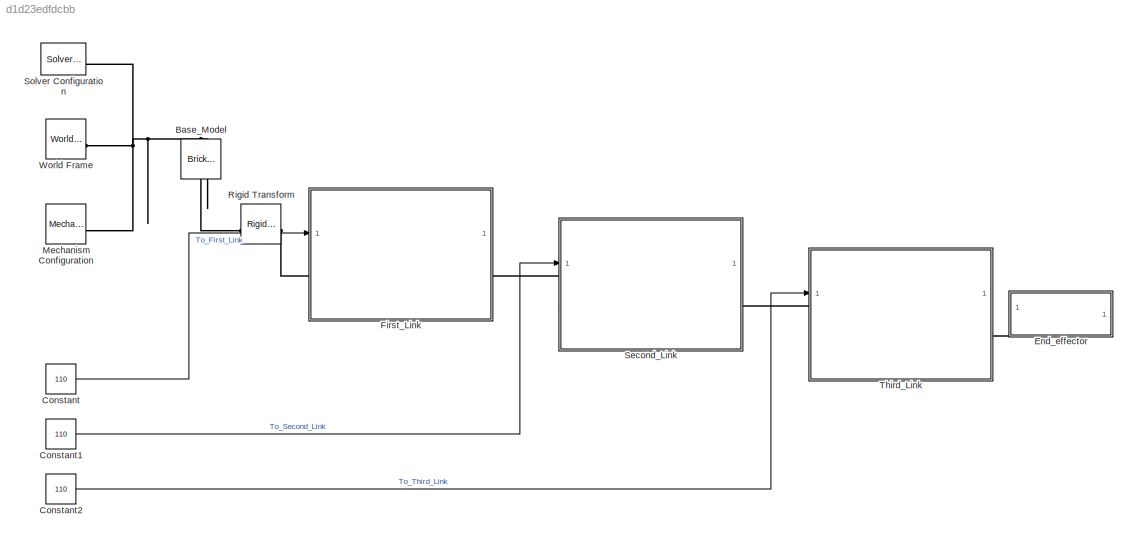
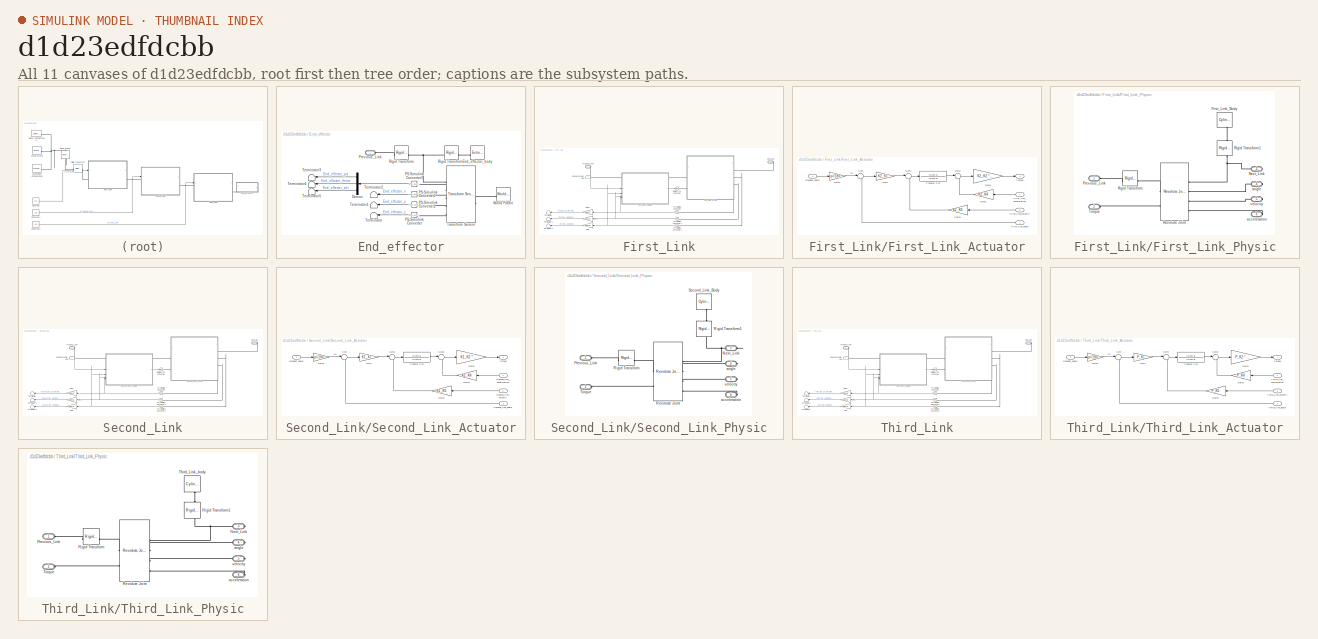
[diagram: thumbnail index - all 11 canvases of the model, root first then tree order]
MODEL slx_d1d23edfdcbb
KIND model
CONFIG AbsTol = 1e-3
CONFIG EnableMultiTasking = off
CONFIG FixedStep = auto
CONFIG MaxStep = auto
CONFIG MinStep = auto
CONFIG RelTol = 1e-3
CONFIG SampleTimeConstraint = Unconstrained
CONFIG SolverName = VariableStepAuto
CONFIG StartTime = 0.0
CONFIG StopTime = 1
BLOCK [Reference] Base_Model  REF=sm_lib/Body Elements/Brick Solid
  NameLocation = left
  SourceBlock = sm_lib/Body Elements/Brick Solid
  SourceType = Brick Solid
BLOCK [Constant] Constant
  Value = 110
BLOCK [Constant] Constant1
  Value = 110
BLOCK [Constant] Constant2
  Value = 110
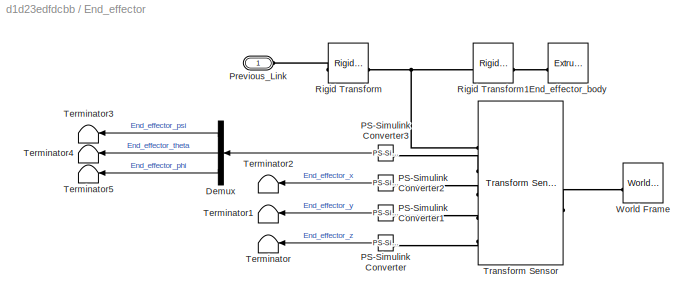
BLOCK [SubSystem] End_effector
BLOCK [PMIOPort] End_effector/ Previous_Link
  Side = Left
BLOCK [Demux] End_effector/Demux
  NameLocation = top
  Outputs = 3
BLOCK [Reference] End_effector/End_effector_body  REF=sm_lib/Body Elements/Extruded Solid
  NameLocation = top
  SourceBlock = sm_lib/Body Elements/Extruded Solid
  SourceType = Extruded Solid
BLOCK [Reference] End_effector/PS-Simulink Converter  REF=nesl_utility/PS-Simulink
Converter
  NameLocation = top
  SourceBlock = nesl_utility/PS-Simulink\nConverter
  SourceType = PS-Simulink\nConverter
BLOCK [Reference] End_effector/PS-Simulink Converter1  REF=nesl_utility/PS-Simulink
Converter
  NameLocation = top
  SourceBlock = nesl_utility/PS-Simulink\nConverter
  SourceType = PS-Simulink\nConverter
BLOCK [Reference] End_effector/PS-Simulink Converter2  REF=nesl_utility/PS-Simulink
Converter
  NameLocation = top
  SourceBlock = nesl_utility/PS-Simulink\nConverter
  SourceType = PS-Simulink\nConverter
BLOCK [Reference] End_effector/PS-Simulink Converter3  REF=nesl_utility/PS-Simulink
Converter
  NameLocation = top
  SourceBlock = nesl_utility/PS-Simulink\nConverter
  SourceType = PS-Simulink\nConverter
BLOCK [Reference] End_effector/Rigid Transform  REF=sm_lib/Frames and
Transforms/Rigid
Transform
  SourceBlock = sm_lib/Frames and\nTransforms/Rigid\nTransform
  SourceType = Rigid\nTransform
BLOCK [Reference] End_effector/Rigid Transform1  REF=sm_lib/Frames and
Transforms/Rigid
Transform
  NameLocation = top
  SourceBlock = sm_lib/Frames and\nTransforms/Rigid\nTransform
  SourceType = Rigid\nTransform
BLOCK [Terminator] End_effector/Terminator
  NameLocation = top
BLOCK [Terminator] End_effector/Terminator1
  NameLocation = top
BLOCK [Terminator] End_effector/Terminator2
  NameLocation = top
BLOCK [Terminator] End_effector/Terminator3
  NameLocation = top
BLOCK [Terminator] End_effector/Terminator4
  NameLocation = top
BLOCK [Terminator] End_effector/Terminator5
  NameLocation = top
BLOCK [Reference] End_effector/Transform Sensor  REF=sm_lib/Frames and
Transforms/Transform
Sensor
  SourceBlock = sm_lib/Frames and\nTransforms/Transform\nSensor
  SourceType = Transform\nSensor
BLOCK [Reference] End_effector/World Frame  REF=sm_lib/Frames and
Transforms/World Frame
  SourceBlock = sm_lib/Frames and\nTransforms/World Frame
  SourceType = World Frame
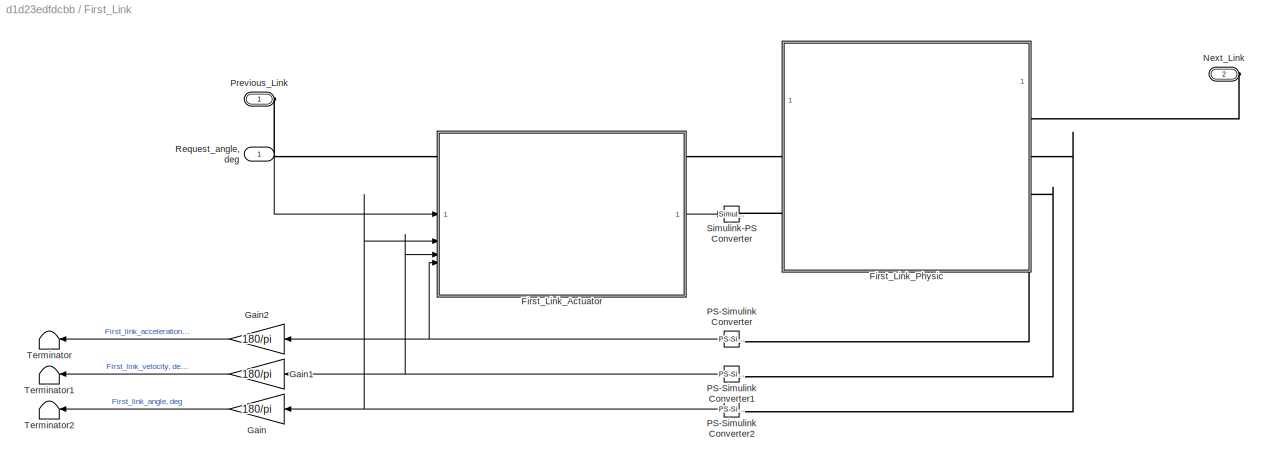
BLOCK [SubSystem] First_Link
  PortSchema = {"entries":[{"content":{"sides":[{"content":{"connectorIds":["LConn1","In1"]},"type":"ConnectorPlacement.EquallySpacedRectSide","uuid":"66fdbe92-d6ab-4206-84fe-86206e1853da"},{"content":{"connectorIds":["RConn1"],"side":"RIGHT"},"type":"ConnectorPlacement.EquallySpacedRectSide","uuid":"85951761-cf01-4a63-8fcb-bb43d3271314"},{"content":{"side":"TOP"},"type":"ConnectorPlacement.EquallySpacedRectSide...<+233ch>  <repeated x3 — deduplicated; at blocks: First_Link, Second_Link, Third_Link>
BLOCK [SubSystem] First_Link/First_Link_Actuator
BLOCK [Inport] First_Link/First_Link_Actuator/First_link_acceleration
  NameLocation = right
  Port = 4
BLOCK [Inport] First_Link/First_Link_Actuator/First_link_angle
  NameLocation = right
  Port = 2
BLOCK [Inport] First_Link/First_Link_Actuator/First_link_velocity
  NameLocation = right
  Port = 3
BLOCK [Gain] First_Link/First_Link_Actuator/Gain
  Gain = K2_K1
BLOCK [Gain] First_Link/First_Link_Actuator/Gain1
  Gain = K2_K2 * K2_K3
BLOCK [Gain] First_Link/First_Link_Actuator/Gain2
  Gain = K2_K4
BLOCK [Gain] First_Link/First_Link_Actuator/Gain3
  Gain = K2_K5
BLOCK [Gain] First_Link/First_Link_Actuator/Gain4
  Gain = pi/180
BLOCK [Inport] First_Link/First_Link_Actuator/Request_angle
BLOCK [Sum] First_Link/First_Link_Actuator/Sum
  Inputs = |+-
BLOCK [Sum] First_Link/First_Link_Actuator/Sum1
  Inputs = |+-
BLOCK [Sum] First_Link/First_Link_Actuator/Sum2
  Inputs = |+-
BLOCK [Outport] First_Link/First_Link_Actuator/Torque
  NameLocation = right
BLOCK [TransferFcn] First_Link/First_Link_Actuator/Transfer Fcn
  Denominator = [0.044 0]
  Numerator = [0.044 1]
BLOCK [SubSystem] First_Link/First_Link_Physic
BLOCK [Reference] First_Link/First_Link_Physic/First_Link_Body  REF=sm_lib/Body Elements/Cylindrical Solid
  NameLocation = left
  SourceBlock = sm_lib/Body Elements/Cylindrical Solid
  SourceType = Cylindrical Solid
BLOCK [PMIOPort] First_Link/First_Link_Physic/Next_Link
  NameLocation = right
  Port = 3
  Side = Right
BLOCK [PMIOPort] First_Link/First_Link_Physic/Previous_Link
  Side = Left
BLOCK [Reference] First_Link/First_Link_Physic/Revolute Joint  REF=sm_lib/Joints/Revolute Joint
  SourceBlock = sm_lib/Joints/Revolute Joint
  SourceType = Revolute Joint
BLOCK [Reference] First_Link/First_Link_Physic/Rigid Transform  REF=sm_lib/Frames and
Transforms/Rigid
Transform
  SourceBlock = sm_lib/Frames and\nTransforms/Rigid\nTransform
  SourceType = Rigid\nTransform
BLOCK [Reference] First_Link/First_Link_Physic/Rigid Transform1  REF=sm_lib/Frames and
Transforms/Rigid
Transform
  NameLocation = left
  SourceBlock = sm_lib/Frames and\nTransforms/Rigid\nTransform
  SourceType = Rigid\nTransform
BLOCK [PMIOPort] First_Link/First_Link_Physic/Torque
  Port = 2
  Side = Left
BLOCK [PMIOPort] First_Link/First_Link_Physic/acceleration
  NameLocation = right
  Port = 6
  Side = Right
BLOCK [PMIOPort] First_Link/First_Link_Physic/angle
  NameLocation = right
  Port = 4
  Side = Right
BLOCK [PMIOPort] First_Link/First_Link_Physic/velocity
  NameLocation = right
  Port = 5
  Side = Right
BLOCK [Gain] First_Link/Gain
  Gain = 180/pi
BLOCK [Gain] First_Link/Gain1
  Gain = 180/pi
BLOCK [Gain] First_Link/Gain2
  Gain = 180/pi
BLOCK [PMIOPort] First_Link/Next_Link
  Port = 2
  Side = Right
BLOCK [Reference] First_Link/PS-Simulink Converter  REF=nesl_utility/PS-Simulink
Converter
  SourceBlock = nesl_utility/PS-Simulink\nConverter
  SourceType = PS-Simulink\nConverter
BLOCK [Reference] First_Link/PS-Simulink Converter1  REF=nesl_utility/PS-Simulink
Converter
  SourceBlock = nesl_utility/PS-Simulink\nConverter
  SourceType = PS-Simulink\nConverter
BLOCK [Reference] First_Link/PS-Simulink Converter2  REF=nesl_utility/PS-Simulink
Converter
  SourceBlock = nesl_utility/PS-Simulink\nConverter
  SourceType = PS-Simulink\nConverter
BLOCK [PMIOPort] First_Link/Previous_Link
  Side = Left
BLOCK [Inport] First_Link/Request_angle, deg
BLOCK [Reference] First_Link/Simulink-PS Converter  REF=nesl_utility/Simulink-PS
Converter
  SourceBlock = nesl_utility/Simulink-PS\nConverter
  SourceType = Simulink-PS\nConverter
BLOCK [Terminator] First_Link/Terminator
BLOCK [Terminator] First_Link/Terminator1
BLOCK [Terminator] First_Link/Terminator2
BLOCK [Reference] Mechanism Configuration  REF=sm_lib/Utilities/Mechanism
Configuration
  SourceBlock = sm_lib/Utilities/Mechanism\nConfiguration
  SourceType = Mechanism\nConfiguration
BLOCK [Reference] Rigid Transform  REF=sm_lib/Frames and
Transforms/Rigid
Transform
  SourceBlock = sm_lib/Frames and\nTransforms/Rigid\nTransform
  SourceType = Rigid\nTransform
BLOCK [SubSystem] Second_Link
BLOCK [Gain] Second_Link/Gain
  Gain = 180/pi
BLOCK [Gain] Second_Link/Gain1
  Gain = 180/pi
BLOCK [Gain] Second_Link/Gain2
  Gain = 180/pi
BLOCK [PMIOPort] Second_Link/Next_Link
  Port = 2
  Side = Right
BLOCK [Reference] Second_Link/PS-Simulink Converter  REF=nesl_utility/PS-Simulink
Converter
  SourceBlock = nesl_utility/PS-Simulink\nConverter
  SourceType = PS-Simulink\nConverter
BLOCK [Reference] Second_Link/PS-Simulink Converter1  REF=nesl_utility/PS-Simulink
Converter
  SourceBlock = nesl_utility/PS-Simulink\nConverter
  SourceType = PS-Simulink\nConverter
BLOCK [Reference] Second_Link/PS-Simulink Converter2  REF=nesl_utility/PS-Simulink
Converter
  SourceBlock = nesl_utility/PS-Simulink\nConverter
  SourceType = PS-Simulink\nConverter
BLOCK [PMIOPort] Second_Link/Previous_Link
  Side = Left
BLOCK [Inport] Second_Link/Request_angle, deg
BLOCK [SubSystem] Second_Link/Second_Link_Actuator
BLOCK [Gain] Second_Link/Second_Link_Actuator/Gain
  Gain = K1_K1
BLOCK [Gain] Second_Link/Second_Link_Actuator/Gain1
  Gain = K1_K2 * K1_K3
BLOCK [Gain] Second_Link/Second_Link_Actuator/Gain2
  Gain = K1_K4
BLOCK [Gain] Second_Link/Second_Link_Actuator/Gain3
  Gain = K1_K5
BLOCK [Gain] Second_Link/Second_Link_Actuator/Gain4
  Gain = pi/180
BLOCK [Inport] Second_Link/Second_Link_Actuator/Request_angle
BLOCK [Inport] Second_Link/Second_Link_Actuator/Second_link_acceleration
  NameLocation = right
  Port = 4
BLOCK [Inport] Second_Link/Second_Link_Actuator/Second_link_angle
  NameLocation = right
  Port = 2
BLOCK [Inport] Second_Link/Second_Link_Actuator/Second_link_velocity
  NameLocation = right
  Port = 3
BLOCK [Sum] Second_Link/Second_Link_Actuator/Sum
  Inputs = |+-
BLOCK [Sum] Second_Link/Second_Link_Actuator/Sum1
  Inputs = |+-
BLOCK [Sum] Second_Link/Second_Link_Actuator/Sum2
  Inputs = |+-
BLOCK [Outport] Second_Link/Second_Link_Actuator/Torque
  NameLocation = right
BLOCK [TransferFcn] Second_Link/Second_Link_Actuator/Transfer Fcn
  Denominator = [0.044 0]
  Numerator = [0.044 1]
BLOCK [SubSystem] Second_Link/Second_Link_Physic
BLOCK [PMIOPort] Second_Link/Second_Link_Physic/Next_Link
  NameLocation = right
  Port = 3
  Side = Right
BLOCK [PMIOPort] Second_Link/Second_Link_Physic/Previous_Link
  Side = Left
BLOCK [Reference] Second_Link/Second_Link_Physic/Revolute Joint  REF=sm_lib/Joints/Revolute Joint
  SourceBlock = sm_lib/Joints/Revolute Joint
  SourceType = Revolute Joint
BLOCK [Reference] Second_Link/Second_Link_Physic/Rigid Transform  REF=sm_lib/Frames and
Transforms/Rigid
Transform
  SourceBlock = sm_lib/Frames and\nTransforms/Rigid\nTransform
  SourceType = Rigid\nTransform
BLOCK [Reference] Second_Link/Second_Link_Physic/Rigid Transform1  REF=sm_lib/Frames and
Transforms/Rigid
Transform
  NameLocation = left
  SourceBlock = sm_lib/Frames and\nTransforms/Rigid\nTransform
  SourceType = Rigid\nTransform
BLOCK [Reference] Second_Link/Second_Link_Physic/Second_Link_Body  REF=sm_lib/Body Elements/Cylindrical Solid
  NameLocation = left
  SourceBlock = sm_lib/Body Elements/Cylindrical Solid
  SourceType = Cylindrical Solid
BLOCK [PMIOPort] Second_Link/Second_Link_Physic/Torque
  Port = 2
  Side = Left
BLOCK [PMIOPort] Second_Link/Second_Link_Physic/acceleration
  NameLocation = right
  Port = 6
  Side = Right
BLOCK [PMIOPort] Second_Link/Second_Link_Physic/angle
  NameLocation = right
  Port = 4
  Side = Right
BLOCK [PMIOPort] Second_Link/Second_Link_Physic/velocity
  NameLocation = right
  Port = 5
  Side = Right
BLOCK [Reference] Second_Link/Simulink-PS Converter  REF=nesl_utility/Simulink-PS
Converter
  SourceBlock = nesl_utility/Simulink-PS\nConverter
  SourceType = Simulink-PS\nConverter
BLOCK [Terminator] Second_Link/Terminator
BLOCK [Terminator] Second_Link/Terminator1
BLOCK [Terminator] Second_Link/Terminator2
BLOCK [Reference] Solver Configuration  REF=nesl_utility/Solver
Configuration
  SourceBlock = nesl_utility/Solver\nConfiguration
  SourceType = Solver\nConfiguration
BLOCK [SubSystem] Third_Link
BLOCK [Gain] Third_Link/Gain
  Gain = 180/pi
BLOCK [Gain] Third_Link/Gain1
  Gain = 180/pi
BLOCK [Gain] Third_Link/Gain2
  Gain = 180/pi
BLOCK [PMIOPort] Third_Link/Next_Link
  Port = 2
  Side = Right
BLOCK [Reference] Third_Link/PS-Simulink Converter  REF=nesl_utility/PS-Simulink
Converter
  SourceBlock = nesl_utility/PS-Simulink\nConverter
  SourceType = PS-Simulink\nConverter
BLOCK [Reference] Third_Link/PS-Simulink Converter1  REF=nesl_utility/PS-Simulink
Converter
  SourceBlock = nesl_utility/PS-Simulink\nConverter
  SourceType = PS-Simulink\nConverter
BLOCK [Reference] Third_Link/PS-Simulink Converter2  REF=nesl_utility/PS-Simulink
Converter
  SourceBlock = nesl_utility/PS-Simulink\nConverter
  SourceType = PS-Simulink\nConverter
BLOCK [PMIOPort] Third_Link/Previous_Link
  Side = Left
BLOCK [Inport] Third_Link/Request_angle, deg
BLOCK [Reference] Third_Link/Simulink-PS Converter  REF=nesl_utility/Simulink-PS
Converter
  SourceBlock = nesl_utility/Simulink-PS\nConverter
  SourceType = Simulink-PS\nConverter
BLOCK [Terminator] Third_Link/Terminator
BLOCK [Terminator] Third_Link/Terminator1
BLOCK [Terminator] Third_Link/Terminator2
BLOCK [SubSystem] Third_Link/Third_Link_Actuator
BLOCK [Gain] Third_Link/Third_Link_Actuator/Gain
  Gain = P_K1
BLOCK [Gain] Third_Link/Third_Link_Actuator/Gain1
  Gain = P_K2 * P_K3
BLOCK [Gain] Third_Link/Third_Link_Actuator/Gain2
  Gain = P_K4
BLOCK [Gain] Third_Link/Third_Link_Actuator/Gain3
  Gain = P_K5
BLOCK [Gain] Third_Link/Third_Link_Actuator/Gain4
  Gain = pi/180
BLOCK [Inport] Third_Link/Third_Link_Actuator/Request_angle
BLOCK [Sum] Third_Link/Third_Link_Actuator/Sum
  Inputs = |+-
BLOCK [Sum] Third_Link/Third_Link_Actuator/Sum1
  Inputs = |+-
BLOCK [Sum] Third_Link/Third_Link_Actuator/Sum2
  Inputs = |+-
BLOCK [Inport] Third_Link/Third_Link_Actuator/Third_link_acceleration
  NameLocation = right
  Port = 4
BLOCK [Inport] Third_Link/Third_Link_Actuator/Third_link_angle
  NameLocation = right
  Port = 2
BLOCK [Inport] Third_Link/Third_Link_Actuator/Third_link_velocity
  NameLocation = right
  Port = 3
BLOCK [Outport] Third_Link/Third_Link_Actuator/Torque
  NameLocation = right
BLOCK [TransferFcn] Third_Link/Third_Link_Actuator/Transfer Fcn
  Denominator = [0.044 0]
  Numerator = [0.044 1]
BLOCK [SubSystem] Third_Link/Third_Link_Physic
BLOCK [PMIOPort] Third_Link/Third_Link_Physic/Next_Link
  NameLocation = right
  Port = 3
  Side = Right
BLOCK [PMIOPort] Third_Link/Third_Link_Physic/Previous_Link
  Side = Left
BLOCK [Reference] Third_Link/Third_Link_Physic/Revolute Joint  REF=sm_lib/Joints/Revolute Joint
  SourceBlock = sm_lib/Joints/Revolute Joint
  SourceType = Revolute Joint
BLOCK [Reference] Third_Link/Third_Link_Physic/Rigid Transform  REF=sm_lib/Frames and
Transforms/Rigid
Transform
  SourceBlock = sm_lib/Frames and\nTransforms/Rigid\nTransform
  SourceType = Rigid\nTransform
BLOCK [Reference] Third_Link/Third_Link_Physic/Rigid Transform1  REF=sm_lib/Frames and
Transforms/Rigid
Transform
  NameLocation = left
  SourceBlock = sm_lib/Frames and\nTransforms/Rigid\nTransform
  SourceType = Rigid\nTransform
BLOCK [Reference] Third_Link/Third_Link_Physic/Third_Link_body  REF=sm_lib/Body Elements/Cylindrical Solid
  NameLocation = left
  SourceBlock = sm_lib/Body Elements/Cylindrical Solid
  SourceType = Cylindrical Solid
BLOCK [PMIOPort] Third_Link/Third_Link_Physic/Torque
  Port = 2
  Side = Left
BLOCK [PMIOPort] Third_Link/Third_Link_Physic/acceleration
  NameLocation = right
  Port = 6
  Side = Right
BLOCK [PMIOPort] Third_Link/Third_Link_Physic/angle
  NameLocation = right
  Port = 4
  Side = Right
BLOCK [PMIOPort] Third_Link/Third_Link_Physic/velocity
  NameLocation = right
  Port = 5
  Side = Right
BLOCK [Reference] World Frame  REF=sm_lib/Frames and
Transforms/World Frame
  SourceBlock = sm_lib/Frames and\nTransforms/World Frame
  SourceType = World Frame
LINE Constant1:1 -> Second_Link:1
LINE Constant2:1 -> Third_Link:1
LINE Constant:1 -> First_Link:1
LINE End_effector/Demux:1 -> End_effector/Terminator3:1
LINE End_effector/Demux:2 -> End_effector/Terminator4:1
LINE End_effector/Demux:3 -> End_effector/Terminator5:1
LINE End_effector/PS-Simulink Converter1:1 -> End_effector/Terminator1:1
LINE End_effector/PS-Simulink Converter2:1 -> End_effector/Terminator2:1
LINE End_effector/PS-Simulink Converter3:1 -> End_effector/Demux:1
LINE End_effector/PS-Simulink Converter:1 -> End_effector/Terminator:1
LINE First_Link/First_Link_Actuator/First_link_acceleration:1 -> First_Link/First_Link_Actuator/Gain2:1
LINE First_Link/First_Link_Actuator/First_link_angle:1 -> First_Link/First_Link_Actuator/Sum:2
LINE First_Link/First_Link_Actuator/First_link_velocity:1 -> First_Link/First_Link_Actuator/Gain3:1
LINE First_Link/First_Link_Actuator/Gain1:1 -> First_Link/First_Link_Actuator/Torque:1
LINE First_Link/First_Link_Actuator/Gain2:1 -> First_Link/First_Link_Actuator/Sum2:2
LINE First_Link/First_Link_Actuator/Gain3:1 -> First_Link/First_Link_Actuator/Sum1:2
LINE First_Link/First_Link_Actuator/Gain4:1 -> First_Link/First_Link_Actuator/Sum:1
LINE First_Link/First_Link_Actuator/Gain:1 -> First_Link/First_Link_Actuator/Sum1:1
LINE First_Link/First_Link_Actuator/Request_angle:1 -> First_Link/First_Link_Actuator/Gain4:1
LINE First_Link/First_Link_Actuator/Sum1:1 -> First_Link/First_Link_Actuator/Transfer Fcn:1
LINE First_Link/First_Link_Actuator/Sum2:1 -> First_Link/First_Link_Actuator/Gain1:1
LINE First_Link/First_Link_Actuator/Sum:1 -> First_Link/First_Link_Actuator/Gain:1
LINE First_Link/First_Link_Actuator/Transfer Fcn:1 -> First_Link/First_Link_Actuator/Sum2:1
LINE First_Link/First_Link_Actuator:1 -> First_Link/Simulink-PS Converter:1
LINE First_Link/Gain1:1 -> First_Link/Terminator1:1
LINE First_Link/Gain2:1 -> First_Link/Terminator:1
LINE First_Link/Gain:1 -> First_Link/Terminator2:1
NET First_Link/PS-Simulink Converter1:1 -> First_Link/First_Link_Actuator:3, First_Link/Gain1:1
NET First_Link/PS-Simulink Converter2:1 -> First_Link/First_Link_Actuator:2, First_Link/Gain:1
NET First_Link/PS-Simulink Converter:1 -> First_Link/First_Link_Actuator:4, First_Link/Gain2:1
LINE First_Link/Request_angle, deg:1 -> First_Link/First_Link_Actuator:1
LINE Second_Link/Gain1:1 -> Second_Link/Terminator1:1
LINE Second_Link/Gain2:1 -> Second_Link/Terminator:1
LINE Second_Link/Gain:1 -> Second_Link/Terminator2:1
NET Second_Link/PS-Simulink Converter1:1 -> Second_Link/Gain1:1, Second_Link/Second_Link_Actuator:3
NET Second_Link/PS-Simulink Converter2:1 -> Second_Link/Gain:1, Second_Link/Second_Link_Actuator:2
NET Second_Link/PS-Simulink Converter:1 -> Second_Link/Gain2:1, Second_Link/Second_Link_Actuator:4
LINE Second_Link/Request_angle, deg:1 -> Second_Link/Second_Link_Actuator:1
LINE Second_Link/Second_Link_Actuator/Gain1:1 -> Second_Link/Second_Link_Actuator/Torque:1
LINE Second_Link/Second_Link_Actuator/Gain2:1 -> Second_Link/Second_Link_Actuator/Sum2:2
LINE Second_Link/Second_Link_Actuator/Gain3:1 -> Second_Link/Second_Link_Actuator/Sum1:2
LINE Second_Link/Second_Link_Actuator/Gain4:1 -> Second_Link/Second_Link_Actuator/Sum:1
LINE Second_Link/Second_Link_Actuator/Gain:1 -> Second_Link/Second_Link_Actuator/Sum1:1
LINE Second_Link/Second_Link_Actuator/Request_angle:1 -> Second_Link/Second_Link_Actuator/Gain4:1
LINE Second_Link/Second_Link_Actuator/Second_link_acceleration:1 -> Second_Link/Second_Link_Actuator/Gain2:1
LINE Second_Link/Second_Link_Actuator/Second_link_angle:1 -> Second_Link/Second_Link_Actuator/Sum:2
LINE Second_Link/Second_Link_Actuator/Second_link_velocity:1 -> Second_Link/Second_Link_Actuator/Gain3:1
LINE Second_Link/Second_Link_Actuator/Sum1:1 -> Second_Link/Second_Link_Actuator/Transfer Fcn:1
LINE Second_Link/Second_Link_Actuator/Sum2:1 -> Second_Link/Second_Link_Actuator/Gain1:1
LINE Second_Link/Second_Link_Actuator/Sum:1 -> Second_Link/Second_Link_Actuator/Gain:1
LINE Second_Link/Second_Link_Actuator/Transfer Fcn:1 -> Second_Link/Second_Link_Actuator/Sum2:1
LINE Second_Link/Second_Link_Actuator:1 -> Second_Link/Simulink-PS Converter:1
LINE Third_Link/Gain1:1 -> Third_Link/Terminator1:1
LINE Third_Link/Gain2:1 -> Third_Link/Terminator:1
LINE Third_Link/Gain:1 -> Third_Link/Terminator2:1
NET Third_Link/PS-Simulink Converter1:1 -> Third_Link/Gain1:1, Third_Link/Third_Link_Actuator:3
NET Third_Link/PS-Simulink Converter2:1 -> Third_Link/Gain:1, Third_Link/Third_Link_Actuator:2
NET Third_Link/PS-Simulink Converter:1 -> Third_Link/Gain2:1, Third_Link/Third_Link_Actuator:4
LINE Third_Link/Request_angle, deg:1 -> Third_Link/Third_Link_Actuator:1
LINE Third_Link/Third_Link_Actuator/Gain1:1 -> Third_Link/Third_Link_Actuator/Torque:1
LINE Third_Link/Third_Link_Actuator/Gain2:1 -> Third_Link/Third_Link_Actuator/Sum2:2
LINE Third_Link/Third_Link_Actuator/Gain3:1 -> Third_Link/Third_Link_Actuator/Sum1:2
LINE Third_Link/Third_Link_Actuator/Gain4:1 -> Third_Link/Third_Link_Actuator/Sum:1
LINE Third_Link/Third_Link_Actuator/Gain:1 -> Third_Link/Third_Link_Actuator/Sum1:1
LINE Third_Link/Third_Link_Actuator/Request_angle:1 -> Third_Link/Third_Link_Actuator/Gain4:1
LINE Third_Link/Third_Link_Actuator/Sum1:1 -> Third_Link/Third_Link_Actuator/Transfer Fcn:1
LINE Third_Link/Third_Link_Actuator/Sum2:1 -> Third_Link/Third_Link_Actuator/Gain1:1
LINE Third_Link/Third_Link_Actuator/Sum:1 -> Third_Link/Third_Link_Actuator/Gain:1
LINE Third_Link/Third_Link_Actuator/Third_link_acceleration:1 -> Third_Link/Third_Link_Actuator/Gain2:1
LINE Third_Link/Third_Link_Actuator/Third_link_angle:1 -> Third_Link/Third_Link_Actuator/Sum:2
LINE Third_Link/Third_Link_Actuator/Third_link_velocity:1 -> Third_Link/Third_Link_Actuator/Gain3:1
LINE Third_Link/Third_Link_Actuator/Transfer Fcn:1 -> Third_Link/Third_Link_Actuator/Sum2:1
LINE Third_Link/Third_Link_Actuator:1 -> Third_Link/Simulink-PS Converter:1
PNET net1: Base_Model:RConn1 -- Mechanism Configuration:RConn1 -- Rigid Transform:LConn1 -- Solver Configuration:RConn1 -- World Frame:RConn1
PLINE End_effector/ Previous_Link:RConn1 -- End_effector/Rigid Transform:LConn1
PLINE End_effector/End_effector_body:RConn1 -- End_effector/Rigid Transform1:LConn1
PLINE End_effector/PS-Simulink Converter1:LConn1 -- End_effector/Transform Sensor:RConn4
PLINE End_effector/PS-Simulink Converter2:LConn1 -- End_effector/Transform Sensor:RConn3
PLINE End_effector/PS-Simulink Converter3:LConn1 -- End_effector/Transform Sensor:RConn2
PLINE End_effector/PS-Simulink Converter:LConn1 -- End_effector/Transform Sensor:RConn5
PNET net2: End_effector/Rigid Transform1:RConn1 -- End_effector/Rigid Transform:RConn1 -- End_effector/Transform Sensor:RConn1
PLINE End_effector/Transform Sensor:LConn1 -- End_effector/World Frame:RConn1
PLINE End_effector:LConn1 -- Third_Link:RConn1
PLINE First_Link/First_Link_Physic/First_Link_Body:RConn1 -- First_Link/First_Link_Physic/Rigid Transform1:LConn1
PNET net3: First_Link/First_Link_Physic/Next_Link:RConn1 -- First_Link/First_Link_Physic/Revolute Joint:RConn1 -- First_Link/First_Link_Physic/Rigid Transform1:RConn1
PLINE First_Link/First_Link_Physic/Previous_Link:RConn1 -- First_Link/First_Link_Physic/Rigid Transform:LConn1
PLINE First_Link/First_Link_Physic/Revolute Joint:LConn1 -- First_Link/First_Link_Physic/Rigid Transform:RConn1
PLINE First_Link/First_Link_Physic/Revolute Joint:LConn2 -- First_Link/First_Link_Physic/Torque:RConn1
PLINE First_Link/First_Link_Physic/Revolute Joint:RConn2 -- First_Link/First_Link_Physic/angle:RConn1
PLINE First_Link/First_Link_Physic/Revolute Joint:RConn3 -- First_Link/First_Link_Physic/velocity:RConn1
PLINE First_Link/First_Link_Physic/Revolute Joint:RConn4 -- First_Link/First_Link_Physic/acceleration:RConn1
PLINE First_Link/First_Link_Physic:LConn1 -- First_Link/Previous_Link:RConn1
PLINE First_Link/First_Link_Physic:LConn2 -- First_Link/Simulink-PS Converter:RConn1
PLINE First_Link/First_Link_Physic:RConn1 -- First_Link/Next_Link:RConn1
PLINE First_Link/First_Link_Physic:RConn2 -- First_Link/PS-Simulink Converter2:LConn1
PLINE First_Link/First_Link_Physic:RConn3 -- First_Link/PS-Simulink Converter1:LConn1
PLINE First_Link/First_Link_Physic:RConn4 -- First_Link/PS-Simulink Converter:LConn1
PLINE First_Link:LConn1 -- Rigid Transform:RConn1
PLINE First_Link:RConn1 -- Second_Link:LConn1
PLINE Second_Link/Next_Link:RConn1 -- Second_Link/Second_Link_Physic:RConn1
PLINE Second_Link/PS-Simulink Converter1:LConn1 -- Second_Link/Second_Link_Physic:RConn3
PLINE Second_Link/PS-Simulink Converter2:LConn1 -- Second_Link/Second_Link_Physic:RConn2
PLINE Second_Link/PS-Simulink Converter:LConn1 -- Second_Link/Second_Link_Physic:RConn4
PLINE Second_Link/Previous_Link:RConn1 -- Second_Link/Second_Link_Physic:LConn1
PNET net4: Second_Link/Second_Link_Physic/Next_Link:RConn1 -- Second_Link/Second_Link_Physic/Revolute Joint:RConn1 -- Second_Link/Second_Link_Physic/Rigid Transform1:RConn1
PLINE Second_Link/Second_Link_Physic/Previous_Link:RConn1 -- Second_Link/Second_Link_Physic/Rigid Transform:LConn1
PLINE Second_Link/Second_Link_Physic/Revolute Joint:LConn1 -- Second_Link/Second_Link_Physic/Rigid Transform:RConn1
PLINE Second_Link/Second_Link_Physic/Revolute Joint:LConn2 -- Second_Link/Second_Link_Physic/Torque:RConn1
PLINE Second_Link/Second_Link_Physic/Revolute Joint:RConn2 -- Second_Link/Second_Link_Physic/angle:RConn1
PLINE Second_Link/Second_Link_Physic/Revolute Joint:RConn3 -- Second_Link/Second_Link_Physic/velocity:RConn1
PLINE Second_Link/Second_Link_Physic/Revolute Joint:RConn4 -- Second_Link/Second_Link_Physic/acceleration:RConn1
PLINE Second_Link/Second_Link_Physic/Rigid Transform1:LConn1 -- Second_Link/Second_Link_Physic/Second_Link_Body:RConn1
PLINE Second_Link/Second_Link_Physic:LConn2 -- Second_Link/Simulink-PS Converter:RConn1
PLINE Second_Link:RConn1 -- Third_Link:LConn1
PLINE Third_Link/Next_Link:RConn1 -- Third_Link/Third_Link_Physic:RConn1
PLINE Third_Link/PS-Simulink Converter1:LConn1 -- Third_Link/Third_Link_Physic:RConn3
PLINE Third_Link/PS-Simulink Converter2:LConn1 -- Third_Link/Third_Link_Physic:RConn2
PLINE Third_Link/PS-Simulink Converter:LConn1 -- Third_Link/Third_Link_Physic:RConn4
PLINE Third_Link/Previous_Link:RConn1 -- Third_Link/Third_Link_Physic:LConn1
PLINE Third_Link/Simulink-PS Converter:RConn1 -- Third_Link/Third_Link_Physic:LConn2
PNET net5: Third_Link/Third_Link_Physic/Next_Link:RConn1 -- Third_Link/Third_Link_Physic/Revolute Joint:RConn1 -- Third_Link/Third_Link_Physic/Rigid Transform1:RConn1
PLINE Third_Link/Third_Link_Physic/Previous_Link:RConn1 -- Third_Link/Third_Link_Physic/Rigid Transform:LConn1
PLINE Third_Link/Third_Link_Physic/Revolute Joint:LConn1 -- Third_Link/Third_Link_Physic/Rigid Transform:RConn1
PLINE Third_Link/Third_Link_Physic/Revolute Joint:LConn2 -- Third_Link/Third_Link_Physic/Torque:RConn1
PLINE Third_Link/Third_Link_Physic/Revolute Joint:RConn2 -- Third_Link/Third_Link_Physic/angle:RConn1
PLINE Third_Link/Third_Link_Physic/Revolute Joint:RConn3 -- Third_Link/Third_Link_Physic/velocity:RConn1
PLINE Third_Link/Third_Link_Physic/Revolute Joint:RConn4 -- Third_Link/Third_Link_Physic/acceleration:RConn1
PLINE Third_Link/Third_Link_Physic/Rigid Transform1:LConn1 -- Third_Link/Third_Link_Physic/Third_Link_body:RConn1
note: NET lines group one-source signal fan-out (src -> all destinations, sorted); 1:1 wires keep LINE; PNET lines group multi-terminal physical nets as a canonical sorted terminal list (undirected conserving connections); 2-terminal nets keep the pairwise PLINE form
